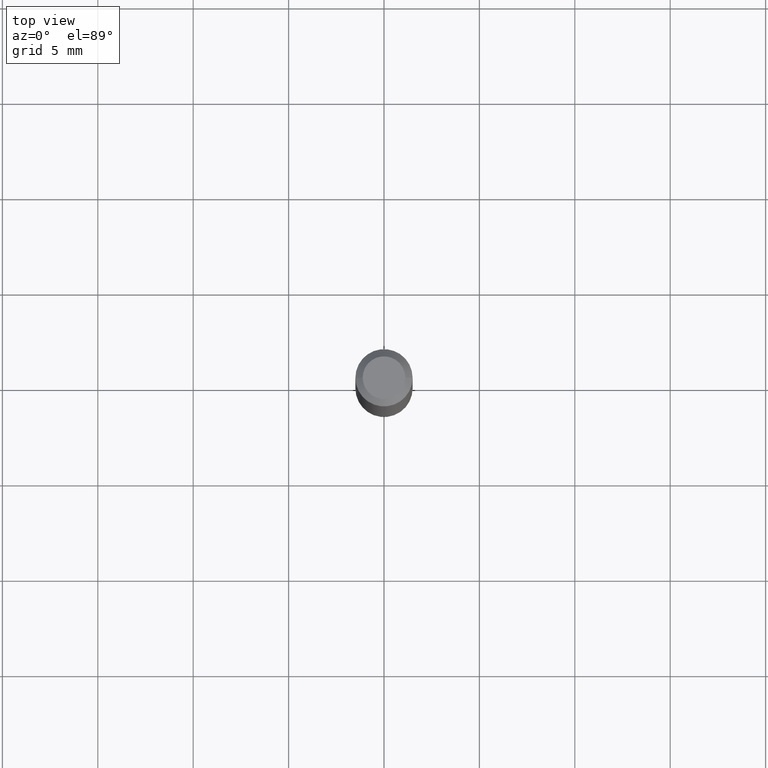
[diagram: clean part render]
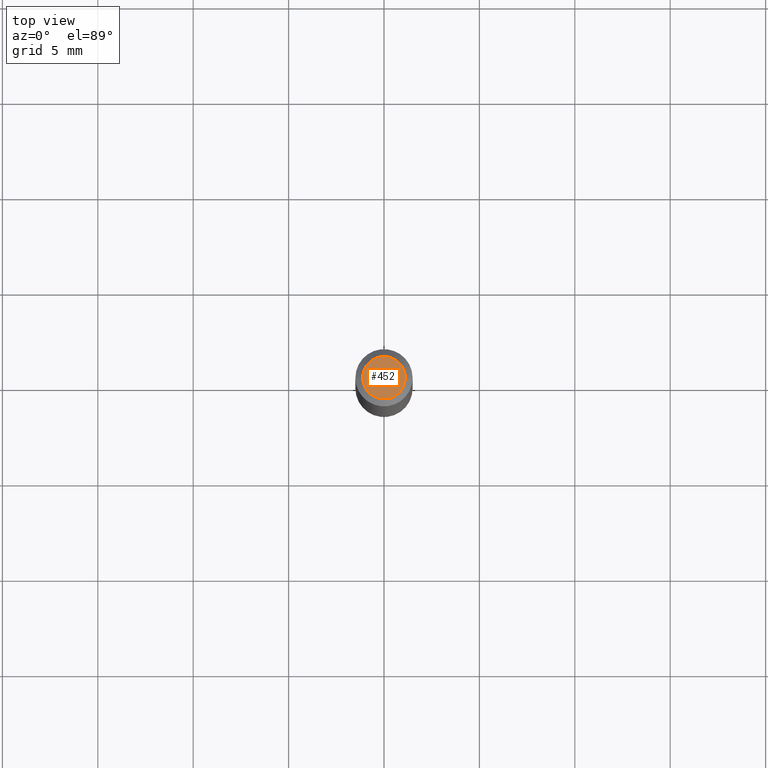
[diagram: same view with one face highlighted and labeled with its STEP entity id]
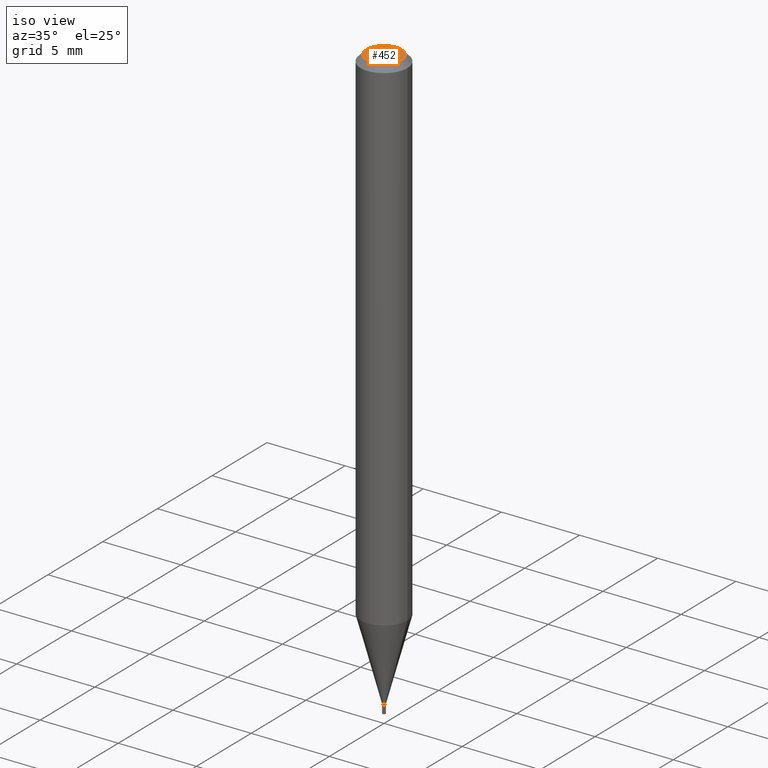
[diagram: same view with one face highlighted and labeled with its STEP entity id]
A machine part, top view. The second image highlights one B-rep face of the part: STEP entity #452.
A second angle (iso view) of the same face is appended — the face is thin or edge-on in the first view.
In plain terms, the highlighted planar face has unit normal (0, -0, -1).
Its self-contained STEP definition (entity closure, byte-faithful):
#38 = ORIENTED_EDGE ( 'NONE', *, *, #456, .T. ) ;
#50 = DIRECTION ( 'NONE',  ( 2.438088387897960049E-29, -3.491481338843145188E-15, -1.000000000000000000 ) ) ;
#62 = DIRECTION ( 'NONE',  ( -2.445468806185136597E-29, 3.491481338843145583E-15, 1.000000000000000000 ) ) ;
#68 = EDGE_CURVE ( 'NONE', #220, #90, #226, .T. ) ;
#90 = VERTEX_POINT ( 'NONE', #457 ) ;
#96 = AXIS2_PLACEMENT_3D ( 'NONE', #143, #224, #331 ) ;
#143 = CARTESIAN_POINT ( 'NONE',  ( -1.468669197094138970E-44, 2.096870375781732313E-30, 6.005675449139022051E-16 ) ) ;
#168 = CARTESIAN_POINT ( 'NONE',  ( -1.468669197094138970E-44, 2.096870375781732313E-30, 6.005675449139022051E-16 ) ) ;
#220 = VERTEX_POINT ( 'NONE', #402 ) ;
#224 = DIRECTION ( 'NONE',  ( -2.445468806185136597E-29, 3.491481338843145583E-15, 1.000000000000000000 ) ) ;
#226 = CIRCLE ( 'NONE', #433, 0.04404999999999999888 ) ;
#230 = CARTESIAN_POINT ( 'NONE',  ( 3.075995059520799729E-16, 0.04404999999999999888, 1.464840194809105491E-16 ) ) ;
#239 = CIRCLE ( 'NONE', #96, 0.04404999999999999888 ) ;
#275 = PLANE ( 'NONE',  #408 ) ;
#308 = ORIENTED_EDGE ( 'NONE', *, *, #68, .T. ) ;
#331 = DIRECTION ( 'NONE',  ( 1.000000000000000000, -6.982962677686265922E-15, 4.957392940945096353E-29 ) ) ;
#357 = DIRECTION ( 'NONE',  ( 1.000000000000000000, -6.982962677686265922E-15, 4.957392940945096353E-29 ) ) ;
#365 = DIRECTION ( 'NONE',  ( -1.000000000000000000, 6.982962677686265922E-15, -4.876176775795935793E-29 ) ) ;
#402 = CARTESIAN_POINT ( 'NONE',  ( -0.04404999999999999888, 3.337856159934044986E-16, 6.005675449139000358E-16 ) ) ;
#408 = AXIS2_PLACEMENT_3D ( 'NONE', #230, #50, #365 ) ;
#433 = AXIS2_PLACEMENT_3D ( 'NONE', #168, #62, #357 ) ;
#439 = FACE_OUTER_BOUND ( 'NONE', #442, .T. ) ;
#442 = EDGE_LOOP ( 'NONE', ( #308, #38 ) ) ;
#452 = ADVANCED_FACE ( 'NONE', ( #439 ), #275, .F. ) ;
#456 = EDGE_CURVE ( 'NONE', #90, #220, #239, .T. ) ;
#457 = CARTESIAN_POINT ( 'NONE',  ( 0.04404999999999999888, -3.798447818264450218E-16, 6.005675449139046703E-16 ) ) ;